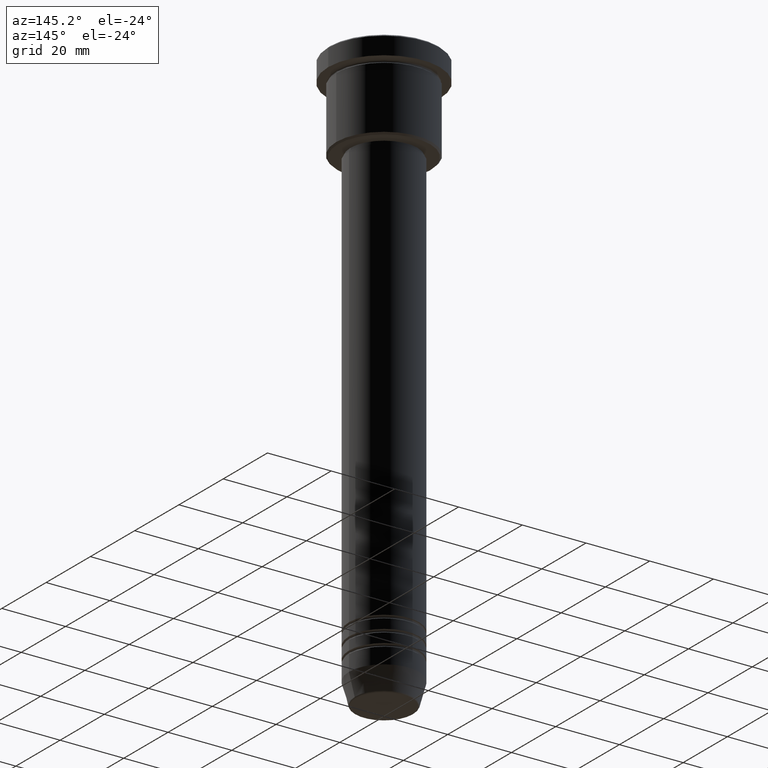
[diagram: clean part render]
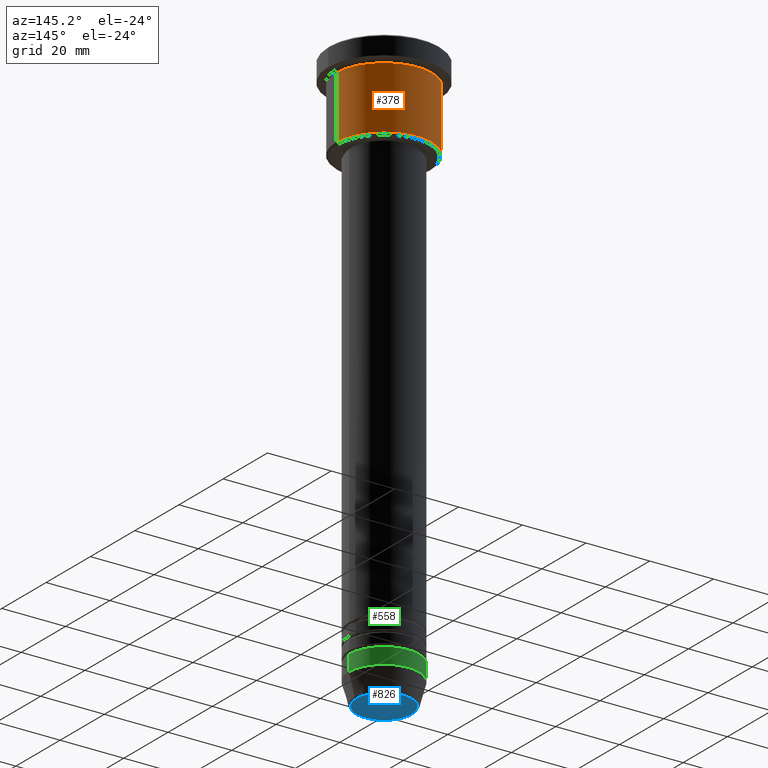
[diagram: same view with three faces highlighted in distinct colors, each labeled with its STEP entity id]
A machine part, auxiliary view with three faces highlighted in distinct colors.
Their STEP definitions:

[orange] entity #378 — the highlighted cylindrical surface (partial cylindrical patch) has radius 15 mm, axis along (-0, -0, 1).
#68 = VECTOR ( 'NONE', #1161, 1000.000000000000000 ) ;
#84 = ORIENTED_EDGE ( 'NONE', *, *, #110, .F. ) ;
#109 = CARTESIAN_POINT ( 'NONE',  ( 0.000000000000000000, 0.000000000000000000, 0.000000000000000000 ) ) ;
#110 = EDGE_CURVE ( 'NONE', #399, #494, #317, .T. ) ;
#125 = CIRCLE ( 'NONE', #931, 15.00000000000000000 ) ;
#150 = AXIS2_PLACEMENT_3D ( 'NONE', #627, #546, #1068 ) ;
#180 = ORIENTED_EDGE ( 'NONE', *, *, #269, .T. ) ;
#190 = FACE_OUTER_BOUND ( 'NONE', #1030, .T. ) ;
#207 = CARTESIAN_POINT ( 'NONE',  ( -15.00000000000000000, 1.836970198721029589E-15, -26.50000000000000711 ) ) ;
#261 = DIRECTION ( 'NONE',  ( -0.000000000000000000, -0.000000000000000000, 1.000000000000000000 ) ) ;
#269 = EDGE_CURVE ( 'NONE', #838, #387, #1156, .T. ) ;
#308 = ORIENTED_EDGE ( 'NONE', *, *, #680, .F. ) ;
#313 = ORIENTED_EDGE ( 'NONE', *, *, #630, .T. ) ;
#317 = LINE ( 'NONE', #909, #359 ) ;
#359 = VECTOR ( 'NONE', #544, 1000.000000000000000 ) ;
#370 = CARTESIAN_POINT ( 'NONE',  ( 15.00000000000000000, 0.000000000000000000, -26.50000000000000711 ) ) ;
#378 = ADVANCED_FACE ( 'NONE', ( #190 ), #557, .T. ) ;
#387 = VERTEX_POINT ( 'NONE', #389 ) ;
#389 = CARTESIAN_POINT ( 'NONE',  ( -15.00000000000000000, 1.836970198721029589E-15, -6.999999999999995559 ) ) ;
#399 = VERTEX_POINT ( 'NONE', #370 ) ;
#445 = CARTESIAN_POINT ( 'NONE',  ( -15.00000000000000000, 1.836970198721029589E-15, 0.000000000000000000 ) ) ;
#454 = AXIS2_PLACEMENT_3D ( 'NONE', #109, #922, #464 ) ;
#464 = DIRECTION ( 'NONE',  ( 1.000000000000000000, 0.000000000000000000, 0.000000000000000000 ) ) ;
#494 = VERTEX_POINT ( 'NONE', #957 ) ;
#544 = DIRECTION ( 'NONE',  ( -0.000000000000000000, -0.000000000000000000, 1.000000000000000000 ) ) ;
#546 = DIRECTION ( 'NONE',  ( -0.000000000000000000, -0.000000000000000000, 1.000000000000000000 ) ) ;
#557 = CYLINDRICAL_SURFACE ( 'NONE', #454, 15.00000000000000000 ) ;
#627 = CARTESIAN_POINT ( 'NONE',  ( 0.000000000000000000, 0.000000000000000000, -26.50000000000000711 ) ) ;
#630 = EDGE_CURVE ( 'NONE', #399, #838, #747, .T. ) ;
#680 = EDGE_CURVE ( 'NONE', #494, #387, #125, .T. ) ;
#708 = DIRECTION ( 'NONE',  ( 1.000000000000000000, 0.000000000000000000, 0.000000000000000000 ) ) ;
#747 = CIRCLE ( 'NONE', #150, 15.00000000000000000 ) ;
#838 = VERTEX_POINT ( 'NONE', #207 ) ;
#909 = CARTESIAN_POINT ( 'NONE',  ( 15.00000000000000000, 0.000000000000000000, 0.000000000000000000 ) ) ;
#922 = DIRECTION ( 'NONE',  ( -0.000000000000000000, -0.000000000000000000, 1.000000000000000000 ) ) ;
#931 = AXIS2_PLACEMENT_3D ( 'NONE', #1079, #261, #708 ) ;
#957 = CARTESIAN_POINT ( 'NONE',  ( 15.00000000000000000, 0.000000000000000000, -6.999999999999995559 ) ) ;
#1030 = EDGE_LOOP ( 'NONE', ( #313, #180, #308, #84 ) ) ;
#1068 = DIRECTION ( 'NONE',  ( -1.000000000000000000, 0.000000000000000000, 0.000000000000000000 ) ) ;
#1079 = CARTESIAN_POINT ( 'NONE',  ( 0.000000000000000000, 0.000000000000000000, -6.999999999999995559 ) ) ;
#1156 = LINE ( 'NONE', #445, #68 ) ;
#1161 = DIRECTION ( 'NONE',  ( -0.000000000000000000, -0.000000000000000000, 1.000000000000000000 ) ) ;

[blue] entity #826 — the highlighted planar face has unit normal (0, -0, 1).
#58 = CARTESIAN_POINT ( 'NONE',  ( 8.740692158992656502, 0.000000000000000000, -182.0000000000000000 ) ) ;
#93 = ORIENTED_EDGE ( 'NONE', *, *, #755, .T. ) ;
#94 = VERTEX_POINT ( 'NONE', #58 ) ;
#140 = VERTEX_POINT ( 'NONE', #437 ) ;
#149 = AXIS2_PLACEMENT_3D ( 'NONE', #506, #872, #676 ) ;
#168 = AXIS2_PLACEMENT_3D ( 'NONE', #406, #1016, #549 ) ;
#177 = FACE_OUTER_BOUND ( 'NONE', #632, .T. ) ;
#200 = CIRCLE ( 'NONE', #168, 8.740692158992656502 ) ;
#307 = DIRECTION ( 'NONE',  ( 0.000000000000000000, -0.000000000000000000, 1.000000000000000000 ) ) ;
#321 = ORIENTED_EDGE ( 'NONE', *, *, #495, .T. ) ;
#369 = CARTESIAN_POINT ( 'NONE',  ( 0.000000000000000000, 0.000000000000000000, -182.0000000000000000 ) ) ;
#406 = CARTESIAN_POINT ( 'NONE',  ( 0.000000000000000000, 0.000000000000000000, -182.0000000000000000 ) ) ;
#437 = CARTESIAN_POINT ( 'NONE',  ( -8.740692158992656502, 1.099999016768739653E-15, -182.0000000000000000 ) ) ;
#495 = EDGE_CURVE ( 'NONE', #140, #94, #913, .T. ) ;
#506 = CARTESIAN_POINT ( 'NONE',  ( 0.000000000000000000, 0.000000000000000000, -182.0000000000000000 ) ) ;
#549 = DIRECTION ( 'NONE',  ( 1.000000000000000000, 0.000000000000000000, 0.000000000000000000 ) ) ;
#632 = EDGE_LOOP ( 'NONE', ( #93, #321 ) ) ;
#676 = DIRECTION ( 'NONE',  ( 1.000000000000000000, 0.000000000000000000, 0.000000000000000000 ) ) ;
#755 = EDGE_CURVE ( 'NONE', #94, #140, #200, .T. ) ;
#824 = PLANE ( 'NONE',  #859 ) ;
#826 = ADVANCED_FACE ( 'NONE', ( #177 ), #824, .F. ) ;
#859 = AXIS2_PLACEMENT_3D ( 'NONE', #369, #307, #864 ) ;
#864 = DIRECTION ( 'NONE',  ( 1.000000000000000000, 0.000000000000000000, 0.000000000000000000 ) ) ;
#872 = DIRECTION ( 'NONE',  ( 0.000000000000000000, 0.000000000000000000, -1.000000000000000000 ) ) ;
#913 = CIRCLE ( 'NONE', #149, 8.740692158992656502 ) ;
#1016 = DIRECTION ( 'NONE',  ( 0.000000000000000000, 0.000000000000000000, -1.000000000000000000 ) ) ;

[green] entity #558 — the highlighted cylindrical surface (partial cylindrical patch) has radius 11 mm, axis along (-0, -0, 1).
#26 = ORIENTED_EDGE ( 'NONE', *, *, #348, .T. ) ;
#115 = LINE ( 'NONE', #372, #614 ) ;
#123 = CIRCLE ( 'NONE', #759, 11.00000000000000000 ) ;
#142 = CYLINDRICAL_SURFACE ( 'NONE', #421, 11.00000000000000000 ) ;
#173 = CARTESIAN_POINT ( 'NONE',  ( 11.00000000000000000, 0.000000000000000000, -175.0000000000000000 ) ) ;
#268 = CARTESIAN_POINT ( 'NONE',  ( -11.00000000000000000, 1.347111479062088405E-15, -175.0000000000000000 ) ) ;
#275 = DIRECTION ( 'NONE',  ( -0.000000000000000000, -0.000000000000000000, 1.000000000000000000 ) ) ;
#332 = DIRECTION ( 'NONE',  ( -0.000000000000000000, -0.000000000000000000, 1.000000000000000000 ) ) ;
#347 = DIRECTION ( 'NONE',  ( 1.000000000000000000, 0.000000000000000000, 0.000000000000000000 ) ) ;
#348 = EDGE_CURVE ( 'NONE', #752, #701, #115, .T. ) ;
#372 = CARTESIAN_POINT ( 'NONE',  ( -11.00000000000000000, 1.347111479062088405E-15, 0.000000000000000000 ) ) ;
#382 = EDGE_CURVE ( 'NONE', #660, #701, #123, .T. ) ;
#401 = EDGE_LOOP ( 'NONE', ( #474, #26, #988, #418 ) ) ;
#403 = DIRECTION ( 'NONE',  ( -0.000000000000000000, -0.000000000000000000, 1.000000000000000000 ) ) ;
#418 = ORIENTED_EDGE ( 'NONE', *, *, #1105, .F. ) ;
#421 = AXIS2_PLACEMENT_3D ( 'NONE', #591, #425, #951 ) ;
#425 = DIRECTION ( 'NONE',  ( -0.000000000000000000, -0.000000000000000000, 1.000000000000000000 ) ) ;
#474 = ORIENTED_EDGE ( 'NONE', *, *, #1166, .T. ) ;
#542 = CARTESIAN_POINT ( 'NONE',  ( 11.00000000000000000, 0.000000000000000000, -169.9999999999999716 ) ) ;
#558 = ADVANCED_FACE ( 'NONE', ( #861 ), #142, .T. ) ;
#581 = LINE ( 'NONE', #853, #973 ) ;
#591 = CARTESIAN_POINT ( 'NONE',  ( 0.000000000000000000, 0.000000000000000000, 0.000000000000000000 ) ) ;
#595 = CIRCLE ( 'NONE', #716, 11.00000000000000000 ) ;
#614 = VECTOR ( 'NONE', #927, 1000.000000000000000 ) ;
#626 = VERTEX_POINT ( 'NONE', #173 ) ;
#628 = CARTESIAN_POINT ( 'NONE',  ( 0.000000000000000000, 0.000000000000000000, -175.0000000000000000 ) ) ;
#652 = DIRECTION ( 'NONE',  ( 1.000000000000000000, 0.000000000000000000, 0.000000000000000000 ) ) ;
#660 = VERTEX_POINT ( 'NONE', #542 ) ;
#701 = VERTEX_POINT ( 'NONE', #1065 ) ;
#716 = AXIS2_PLACEMENT_3D ( 'NONE', #628, #332, #347 ) ;
#752 = VERTEX_POINT ( 'NONE', #268 ) ;
#759 = AXIS2_PLACEMENT_3D ( 'NONE', #1091, #275, #652 ) ;
#853 = CARTESIAN_POINT ( 'NONE',  ( 11.00000000000000000, 0.000000000000000000, 0.000000000000000000 ) ) ;
#861 = FACE_OUTER_BOUND ( 'NONE', #401, .T. ) ;
#927 = DIRECTION ( 'NONE',  ( -0.000000000000000000, -0.000000000000000000, 1.000000000000000000 ) ) ;
#951 = DIRECTION ( 'NONE',  ( 1.000000000000000000, 0.000000000000000000, 0.000000000000000000 ) ) ;
#973 = VECTOR ( 'NONE', #403, 1000.000000000000000 ) ;
#988 = ORIENTED_EDGE ( 'NONE', *, *, #382, .F. ) ;
#1065 = CARTESIAN_POINT ( 'NONE',  ( -11.00000000000000000, 1.347111479062088405E-15, -169.9999999999999716 ) ) ;
#1091 = CARTESIAN_POINT ( 'NONE',  ( 0.000000000000000000, 0.000000000000000000, -169.9999999999999716 ) ) ;
#1105 = EDGE_CURVE ( 'NONE', #626, #660, #581, .T. ) ;
#1166 = EDGE_CURVE ( 'NONE', #626, #752, #595, .T. ) ;